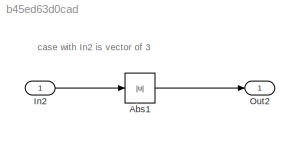
MODEL slx_b45ed63d0cad
KIND model
CONFIG AbsTol = auto
CONFIG EnableMultiTasking = on
CONFIG FixedStep = 0.200000
CONFIG MaxStep = auto
CONFIG MinStep = auto
CONFIG RelTol = 1e-3
CONFIG SampleTimeConstraint = Unconstrained
CONFIG Solver = ode3
CONFIG SolverName = ode3
CONFIG StartTime = 0.0
CONFIG StopTime = 10.0
BLOCK [Abs] Abs1
  SaturateOnIntegerOverflow = off
BLOCK [Inport] In2
  IconDisplay = Port number
  PortDimensions = 3
BLOCK [Outport] Out2
  IconDisplay = Port number
ANNOTATION (root): case with In2 is vector of 3
LINE Abs1:1 -> Out2:1
LINE In2:1 -> Abs1:1
